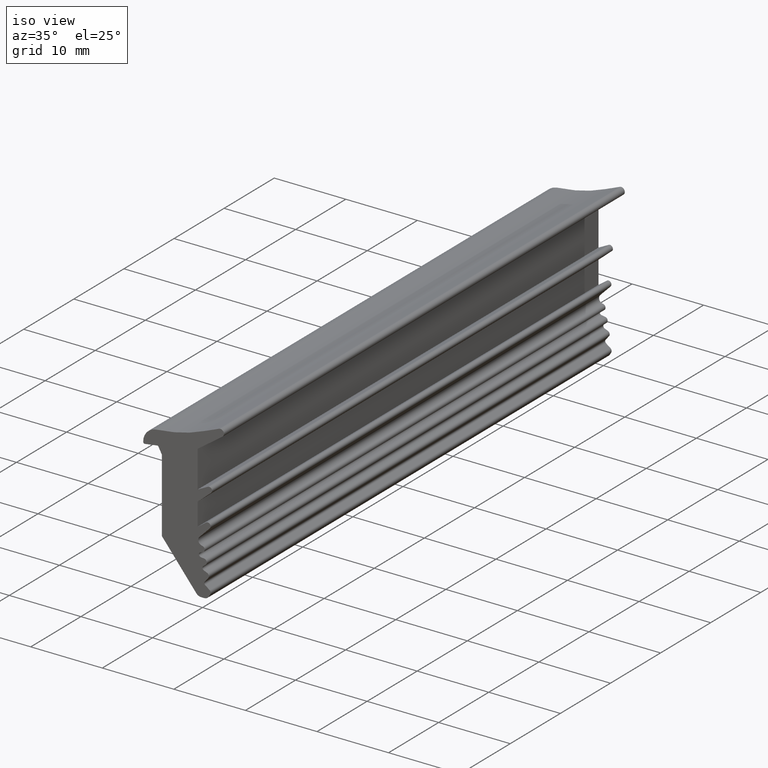
[diagram: clean part render]
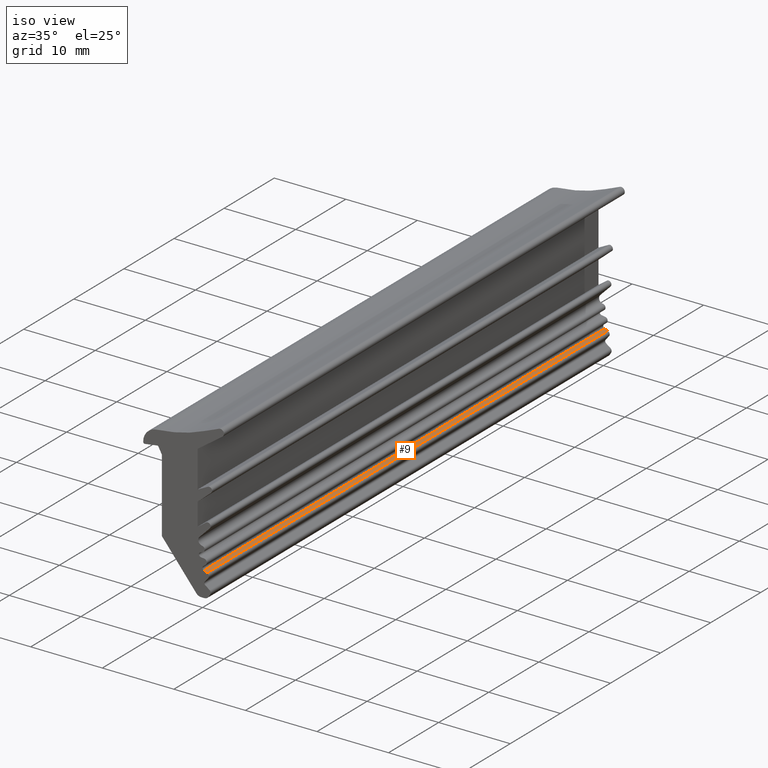
[diagram: same view with one face highlighted and labeled with its STEP entity id]
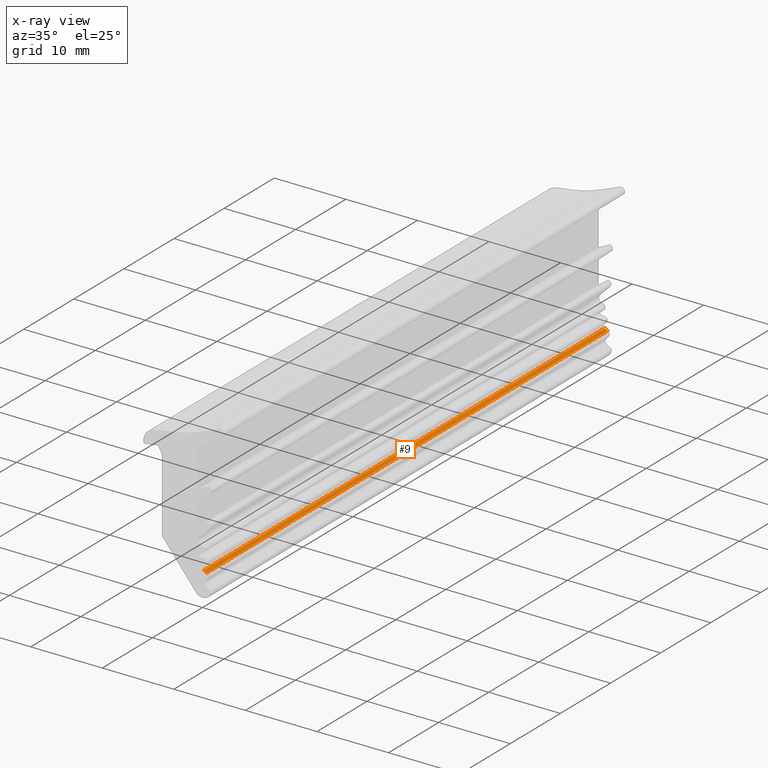
[diagram: x-ray of the same camera — body ghosted, the highlighted face saturated]
A machine part, iso view. The second image highlights one B-rep face of the part: STEP entity #9.
The next image is the same camera in x-ray: the body ghosted, the highlighted face saturated — about 0% of this face is hidden behind the body in this view.
In plain terms, the highlighted planar face has unit normal (-0.3755, 0, -0.9268).
Its self-contained STEP definition (entity closure, byte-faithful):
#9 = ADVANCED_FACE ( 'NONE', ( #371 ), #1187, .F. ) ;
#371 = FACE_OUTER_BOUND ( 'NONE', #396, .T. ) ;
#396 = EDGE_LOOP ( 'NONE', ( #473, #475, #476, #477 ) ) ;
#473 = ORIENTED_EDGE ( 'NONE', *, *, #751, .F. ) ;
#475 = ORIENTED_EDGE ( 'NONE', *, *, #706, .F. ) ;
#476 = ORIENTED_EDGE ( 'NONE', *, *, #690, .T. ) ;
#477 = ORIENTED_EDGE ( 'NONE', *, *, #696, .F. ) ;
#690 = EDGE_CURVE ( 'NONE', #1259, #1258, #1714, .T. ) ;
#696 = EDGE_CURVE ( 'NONE', #847, #1258, #1799, .T. ) ;
#706 = EDGE_CURVE ( 'NONE', #1259, #1254, #1725, .T. ) ;
#723 = AXIS2_PLACEMENT_3D ( 'NONE', #1243, #1171, #1170 ) ;
#751 = EDGE_CURVE ( 'NONE', #1254, #847, #1746, .T. ) ;
#847 = VERTEX_POINT ( 'NONE', #1575 ) ;
#1170 = DIRECTION ( 'NONE',  ( -0.9268373168836427900, 0.0000000000000000000, 0.3754631646805449100 ) ) ;
#1171 = DIRECTION ( 'NONE',  ( -0.3754631646805449100, 0.0000000000000000000, -0.9268373168836427900 ) ) ;
#1187 = PLANE ( 'NONE',  #723 ) ;
#1243 = CARTESIAN_POINT ( 'NONE',  ( 0.1844794169168080000, 80.00000000000000000, 3.481318642584990000 ) ) ;
#1254 = VERTEX_POINT ( 'NONE', #1532 ) ;
#1258 = VERTEX_POINT ( 'NONE', #1528 ) ;
#1259 = VERTEX_POINT ( 'NONE', #1527 ) ;
#1359 = DIRECTION ( 'NONE',  ( -0.9268373168836427900, 0.0000000000000000000, 0.3754631646805449100 ) ) ;
#1360 = CARTESIAN_POINT ( 'NONE',  ( 0.1844794169168080000, 0.0000000000000000000, 3.481318642584990000 ) ) ;
#1458 = CARTESIAN_POINT ( 'NONE',  ( 0.1844794169168080000, 80.00000000000000000, 3.481318642584990000 ) ) ;
#1459 = DIRECTION ( 'NONE',  ( 0.9268373168836427900, -0.0000000000000000000, -0.3754631646805449100 ) ) ;
#1527 = CARTESIAN_POINT ( 'NONE',  ( 0.1844794169168170200, 80.00000000000000000, 3.481318642585012700 ) ) ;
#1528 = CARTESIAN_POINT ( 'NONE',  ( 0.1844794169168170200, 0.0000000000000000000, 3.481318642585012700 ) ) ;
#1532 = CARTESIAN_POINT ( 'NONE',  ( 0.6385351171013197200, 80.00000000000000000, 3.297380008450436800 ) ) ;
#1575 = CARTESIAN_POINT ( 'NONE',  ( 0.6385351171013197200, 0.0000000000000000000, 3.297380008450436800 ) ) ;
#1583 = DIRECTION ( 'NONE',  ( -0.0000000000000000000, -1.000000000000000000, -0.0000000000000000000 ) ) ;
#1584 = CARTESIAN_POINT ( 'NONE',  ( 0.6385351171013220500, 80.00000000000000000, 3.297380008450442500 ) ) ;
#1590 = DIRECTION ( 'NONE',  ( -0.0000000000000000000, -1.000000000000000000, -0.0000000000000000000 ) ) ;
#1595 = CARTESIAN_POINT ( 'NONE',  ( 0.1844794169168260700, 80.00000000000000000, 3.481318642585034900 ) ) ;
#1710 = VECTOR ( 'NONE', #1590, 1000.000000000000000 ) ;
#1714 = LINE ( 'NONE', #1595, #1710 ) ;
#1725 = LINE ( 'NONE', #1458, #1729 ) ;
#1729 = VECTOR ( 'NONE', #1459, 1000.000000000000000 ) ;
#1746 = LINE ( 'NONE', #1584, #1748 ) ;
#1748 = VECTOR ( 'NONE', #1583, 1000.000000000000000 ) ;
#1793 = VECTOR ( 'NONE', #1359, 1000.000000000000000 ) ;
#1799 = LINE ( 'NONE', #1360, #1793 ) ;